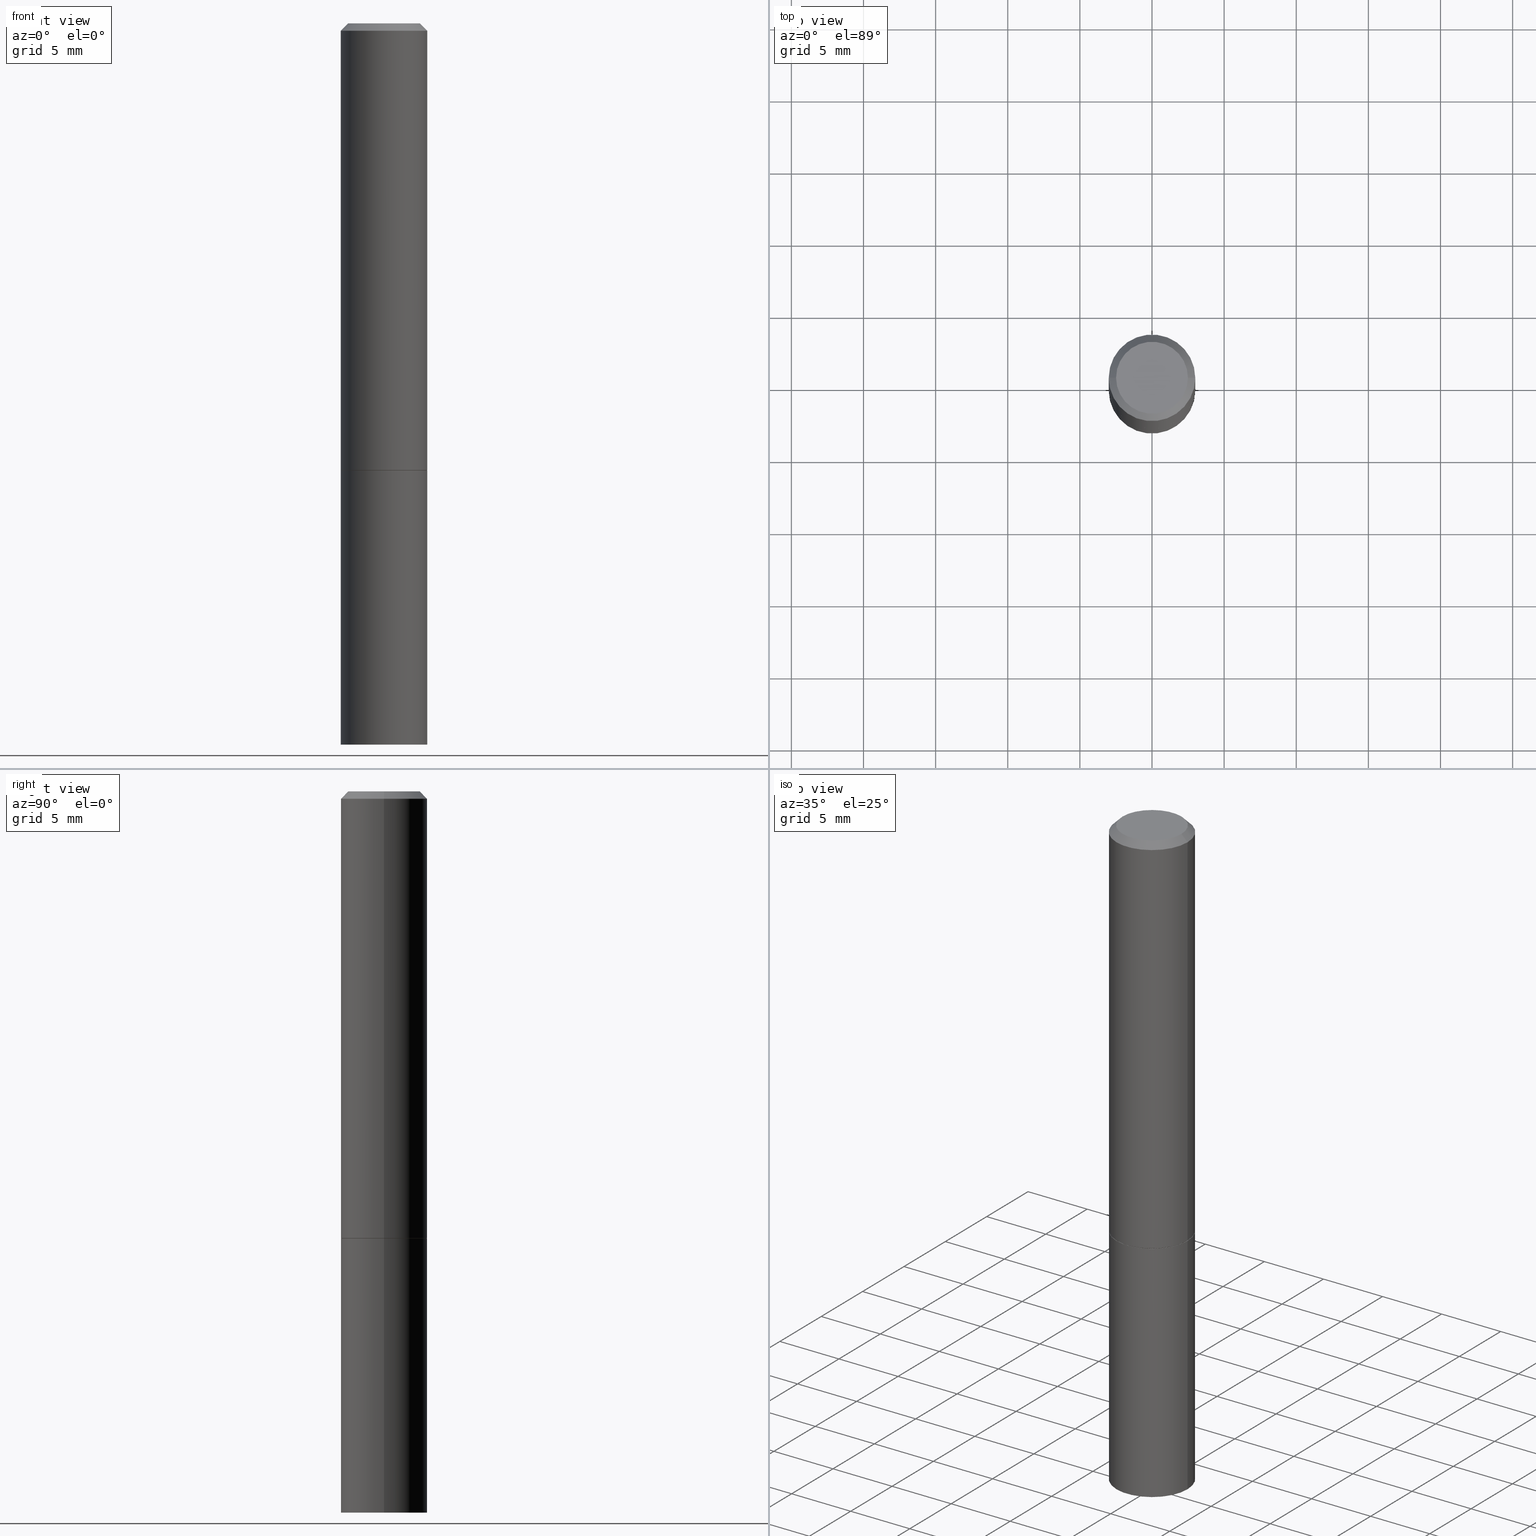
[diagram: canonical four-view strip — front | top / right | iso, engineering-drawing reading convention]
A machine part, canonical four-view strip (front | top / right | iso — engineering-drawing reading convention). The complete STEP part file that produces these views, byte-faithful:
ISO-10303-21;
HEADER;
FILE_DESCRIPTION (( 'STEP AP203' ),
    '1' );
FILE_NAME ('48659.STEP',
    '2024-02-28T13:14:34',
    ( '' ),
    ( '' ),
    'SwSTEP 2.0',
    'SolidWorks 2023',
    '' );
FILE_SCHEMA (( 'CONFIG_CONTROL_DESIGN' ));
ENDSEC;

DATA;
#1 = ORIENTED_EDGE ( 'NONE', *, *, #63, .F. ) ;
#2 = ADVANCED_FACE ( 'NONE', ( #236 ), #242, .T. ) ;
#3 = ORIENTED_EDGE ( 'NONE', *, *, #104, .T. ) ;
#4 = LOCAL_TIME ( 8, 14, 34.00000000000000000, #317 ) ;
#5 = PERSON_AND_ORGANIZATION ( #262, #220 ) ;
#6 = VERTEX_POINT ( 'NONE', #37 ) ;
#7 = APPROVAL_DATE_TIME ( #151, #335 ) ;
#8 = CARTESIAN_POINT ( 'NONE',  ( -0.1170999999999999958, -3.424008976134759437E-15, -1.220499999999999918 ) ) ;
#9 = CARTESIAN_POINT ( 'NONE',  ( 8.246878922347960873E-16, 0.1180999999999931133, -1.968500000000000583 ) ) ;
#10 = CLOSED_SHELL ( 'NONE', ( #2, #129, #85, #34 ) ) ;
#11 = PERSON_AND_ORGANIZATION_ROLE ( 'classification_officer' ) ;
#12 = VERTEX_POINT ( 'NONE', #8 ) ;
#13 = ADVANCED_FACE ( 'NONE', ( #187 ), #101, .T. ) ;
#14 = CALENDAR_DATE ( 2024, 28, 2 ) ;
#15 = ORIENTED_EDGE ( 'NONE', *, *, #63, .T. ) ;
#16 = AXIS2_PLACEMENT_3D ( 'NONE', #106, #43, #160 ) ;
#17 = EDGE_LOOP ( 'NONE', ( #113, #186, #1, #169 ) ) ;
#18 = DIRECTION ( 'NONE',  ( -2.445468806185136597E-29, 3.491481338843145583E-15, 1.000000000000000000 ) ) ;
#19 = DIRECTION ( 'NONE',  ( -2.445468806185136597E-29, 3.491481338843145583E-15, 1.000000000000000000 ) ) ;
#20 = CARTESIAN_POINT ( 'NONE',  ( 0.1180999999999999966, -7.697668907747479970E-15, -1.968500000000000139 ) ) ;
#21 = CC_DESIGN_SECURITY_CLASSIFICATION ( #54, ( #287 ) ) ;
#22 = DIRECTION ( 'NONE',  ( 1.000000000000000000, -6.982962677686266711E-15, 4.876176775795935793E-29 ) ) ;
#23 = APPLICATION_CONTEXT ( 'configuration controlled 3d designs of mechanical parts and assemblies' ) ;
#24 = EDGE_CURVE ( 'NONE', #232, #124, #316, .T. ) ;
#25 = APPROVAL_DATE_TIME ( #144, #346 ) ;
#26 = DIRECTION ( 'NONE',  ( 1.000000000000000000, -6.982962677686265133E-15, 0.000000000000000000 ) ) ;
#27 = ORIENTED_EDGE ( 'NONE', *, *, #214, .F. ) ;
#28 = CALENDAR_DATE ( 2024, 28, 2 ) ;
#29 = ORIENTED_EDGE ( 'NONE', *, *, #209, .T. ) ;
#30 = APPLICATION_PROTOCOL_DEFINITION ( 'international standard', 'config_control_design', 1994, #269 ) ;
#31 = ORIENTED_EDGE ( 'NONE', *, *, #194, .T. ) ;
#32 = DIRECTION ( 'NONE',  ( 1.000000000000000000, -6.982962677686266711E-15, 4.876176775795935793E-29 ) ) ;
#33 = LOCAL_TIME ( 8, 14, 34.00000000000000000, #86 ) ;
#34 = ADVANCED_FACE ( 'NONE', ( #211 ), #354, .T. ) ;
#35 = COORDINATED_UNIVERSAL_TIME_OFFSET ( 5, 0, .BEHIND. ) ;
#36 = APPROVAL_DATE_TIME ( #266, #168 ) ;
#37 = CARTESIAN_POINT ( 'NONE',  ( -0.1180999999999999966, -1.324694588815359885E-15, -1.219500000000000028 ) ) ;
#38 = CARTESIAN_POINT ( 'NONE',  ( 8.246878922347778449E-16, 0.1180999999999957362, -1.220500000000000362 ) ) ;
#39 = AXIS2_PLACEMENT_3D ( 'NONE', #364, #103, #257 ) ;
#40 = CARTESIAN_POINT ( 'NONE',  ( 0.1180999999999998301, -8.800544403136797528E-16, -0.02000000000000003511 ) ) ;
#41 = CC_DESIGN_PERSON_AND_ORGANIZATION_ASSIGNMENT ( #5, #314, ( #274 ) ) ;
#42 = EDGE_LOOP ( 'NONE', ( #27, #83, #29, #255 ) ) ;
#43 = DIRECTION ( 'NONE',  ( -2.445468806185136597E-29, 3.491481338843145583E-15, 1.000000000000000000 ) ) ;
#44 = CLOSED_SHELL ( 'NONE', ( #121, #362, #342, #303, #167, #13, #188, #307 ) ) ;
#45 = DIRECTION ( 'NONE',  ( 2.445468806185136597E-29, -3.491481338843145583E-15, -1.000000000000000000 ) ) ;
#46 = DIRECTION ( 'NONE',  ( 2.438088387897960049E-29, -3.491481338843145188E-15, -1.000000000000000000 ) ) ;
#47 = CYLINDRICAL_SURFACE ( 'NONE', #340, 0.1180999999999999134 ) ;
#48 = VECTOR ( 'NONE', #247, 39.37007874015748143 ) ;
#49 = CARTESIAN_POINT ( 'NONE',  ( 2.982249209142773869E-29, -4.257861492719216809E-15, -1.219500000000000028 ) ) ;
#50 =( LENGTH_UNIT ( ) NAMED_UNIT ( * ) SI_UNIT ( $, .METRE. ) );
#51 = EDGE_LOOP ( 'NONE', ( #207, #315, #15, #227 ) ) ;
#52 = AXIS2_PLACEMENT_3D ( 'NONE', #277, #195, #72 ) ;
#53 = EDGE_LOOP ( 'NONE', ( #203, #149 ) ) ;
#54 = SECURITY_CLASSIFICATION ( '', '', #288 ) ;
#55 = VECTOR ( 'NONE', #172, 39.37007874015748143 ) ;
#56 = MECHANICAL_CONTEXT ( 'NONE', #23, 'mechanical' ) ;
#57 = ORIENTED_EDGE ( 'NONE', *, *, #146, .F. ) ;
#58 = CYLINDRICAL_SURFACE ( 'NONE', #193, 0.1180999999999999134 ) ;
#59 = APPROVAL_PERSON_ORGANIZATION ( #177, #168, #213 ) ;
#60 = DIRECTION ( 'NONE',  ( -2.445468806185136597E-29, 3.491481338843145583E-15, 1.000000000000000000 ) ) ;
#61 = VERTEX_POINT ( 'NONE', #93 ) ;
#62 = CARTESIAN_POINT ( 'NONE',  ( -0.1180999999999998301, 7.548582654578837811E-16, -0.02000000000000003511 ) ) ;
#63 = EDGE_CURVE ( 'NONE', #230, #115, #89, .T. ) ;
#64 = DIRECTION ( 'NONE',  ( 1.000000000000000000, -6.982962677686265133E-15, 0.000000000000000000 ) ) ;
#65 = PLANE ( 'NONE',  #328 ) ;
#66 = ORIENTED_EDGE ( 'NONE', *, *, #104, .F. ) ;
#67 = DIRECTION ( 'NONE',  ( -2.445468806185136597E-29, 3.491481338843145583E-15, 1.000000000000000000 ) ) ;
#68 = EDGE_CURVE ( 'NONE', #208, #230, #120, .T. ) ;
#69 = CARTESIAN_POINT ( 'NONE',  ( 4.890937612370281041E-31, -6.982962677686302702E-17, -0.02000000000000003511 ) ) ;
#70 = AXIS2_PLACEMENT_3D ( 'NONE', #185, #189, #261 ) ;
#71 = CARTESIAN_POINT ( 'NONE',  ( 6.850286386810215676E-16, 0.09809999999999984011, -3.403800630954618031E-16 ) ) ;
#72 = DIRECTION ( 'NONE',  ( 1.000000000000000000, -6.982962677686265133E-15, 0.000000000000000000 ) ) ;
#73 = DIRECTION ( 'NONE',  ( -2.445468806185136877E-29, 3.491481338843145188E-15, 1.000000000000000000 ) ) ;
#74 = VECTOR ( 'NONE', #202, 39.37007874015748143 ) ;
#75 = CARTESIAN_POINT ( 'NONE',  ( 0.1180999999999999966, -5.082549384953964283E-15, -1.219500000000000028 ) ) ;
#76 = DIRECTION ( 'NONE',  ( 1.000000000000000000, 0.000000000000000000, 0.000000000000000000 ) ) ;
#77 = EDGE_LOOP ( 'NONE', ( #57, #295, #289, #154 ) ) ;
#78 = DATE_AND_TIME ( #333, #116 ) ;
#79 = CIRCLE ( 'NONE', #52, 0.1180999999999999966 ) ;
#80 = AXIS2_PLACEMENT_3D ( 'NONE', #112, #114, #76 ) ;
#81 = MANIFOLD_SOLID_BREP ( 'Body-Move/Copy2[2]', #44 ) ;
#82 = DIRECTION ( 'NONE',  ( -2.445468806185136597E-29, 3.491481338843145583E-15, 1.000000000000000000 ) ) ;
#83 = ORIENTED_EDGE ( 'NONE', *, *, #319, .T. ) ;
#84 = DIRECTION ( 'NONE',  ( -2.445468806185136597E-29, 3.491481338843145583E-15, 1.000000000000000000 ) ) ;
#85 = ADVANCED_FACE ( 'NONE', ( #156 ), #267, .F. ) ;
#86 = COORDINATED_UNIVERSAL_TIME_OFFSET ( 5, 0, .BEHIND. ) ;
#87 = DIRECTION ( 'NONE',  ( -1.000000000000000000, 6.982962677686265922E-15, -4.876176775795935793E-29 ) ) ;
#88 = CC_DESIGN_DATE_AND_TIME_ASSIGNMENT ( #264, #238, ( #54 ) ) ;
#89 = CIRCLE ( 'NONE', #139, 0.1180999999999998301 ) ;
#90 = PERSON_AND_ORGANIZATION_ROLE ( 'design_supplier' ) ;
#91 = CARTESIAN_POINT ( 'NONE',  ( 2.984694677948959472E-29, -4.261352974058059028E-15, -1.220499999999999918 ) ) ;
#92 = APPROVAL_ROLE ( '' ) ;
#93 = CARTESIAN_POINT ( 'NONE',  ( 0.1170999999999999958, -5.079057903615120487E-15, -1.220499999999999918 ) ) ;
#94 = CC_DESIGN_PERSON_AND_ORGANIZATION_ASSIGNMENT ( #184, #181, ( #287 ) ) ;
#95 = DIRECTION ( 'NONE',  ( -2.445468806185136597E-29, 3.491481338843145583E-15, 1.000000000000000000 ) ) ;
#96 = AXIS2_PLACEMENT_3D ( 'NONE', #130, #132, #198 ) ;
#97 =( GEOMETRIC_REPRESENTATION_CONTEXT ( 3 ) GLOBAL_UNCERTAINTY_ASSIGNED_CONTEXT ( ( #199 ) ) GLOBAL_UNIT_ASSIGNED_CONTEXT ( ( #138, #256, #147 ) ) REPRESENTATION_CONTEXT ( 'NONE', 'WORKASPACE' ) );
#98 = DIRECTION ( 'NONE',  ( -2.445468806185136597E-29, 3.491481338843145583E-15, 1.000000000000000000 ) ) ;
#99 = CARTESIAN_POINT ( 'NONE',  ( 4.890937612370281041E-31, -6.982962677686302702E-17, -0.02000000000000003511 ) ) ;
#100 = CARTESIAN_POINT ( 'NONE',  ( 0.1180999999999999966, -8.246878922347480654E-16, 5.758764772215000440E-30 ) ) ;
#101 = CONICAL_SURFACE ( 'NONE', #310, 0.1170999999999999958, 0.7853981633975507526 ) ;
#102 = AXIS2_PLACEMENT_3D ( 'NONE', #69, #45, #162 ) ;
#103 = DIRECTION ( 'NONE',  ( -2.445468806185136597E-29, 3.491481338843145583E-15, 1.000000000000000000 ) ) ;
#104 = EDGE_CURVE ( 'NONE', #12, #6, #125, .T. ) ;
#105 = CARTESIAN_POINT ( 'NONE',  ( 0.1180999999999998301, -8.800544403136797528E-16, -0.02000000000000003511 ) ) ;
#106 = CARTESIAN_POINT ( 'NONE',  ( -1.043851414335219820E-46, 1.490343170380447200E-32, 4.268512490100411279E-18 ) ) ;
#107 = AXIS2_PLACEMENT_3D ( 'NONE', #99, #19, #299 ) ;
#108 = CARTESIAN_POINT ( 'NONE',  ( 4.813905344975441835E-29, -6.872981015512731707E-15, -1.968500000000000139 ) ) ;
#109 = EDGE_CURVE ( 'NONE', #124, #232, #286, .T. ) ;
#110 = ORIENTED_EDGE ( 'NONE', *, *, #133, .F. ) ;
#111 = DIRECTION ( 'NONE',  ( 1.000000000000000000, -6.982962677686266711E-15, 4.876195163481339890E-29 ) ) ;
#112 = CARTESIAN_POINT ( 'NONE',  ( 0.000000000000000000, 0.000000000000000000, 0.000000000000000000 ) ) ;
#113 = ORIENTED_EDGE ( 'NONE', *, *, #137, .T. ) ;
#114 = DIRECTION ( 'NONE',  ( 0.000000000000000000, 0.000000000000000000, 1.000000000000000000 ) ) ;
#115 = VERTEX_POINT ( 'NONE', #62 ) ;
#116 = LOCAL_TIME ( 8, 14, 34.00000000000000000, #225 ) ;
#117 = PRODUCT_DEFINITION ( 'UNKNOWN', '', #287, #155 ) ;
#118 = COORDINATED_UNIVERSAL_TIME_OFFSET ( 5, 0, .BEHIND. ) ;
#119 = DIRECTION ( 'NONE',  ( 0.7071067811865466846, -7.319954787623252890E-15, -0.7071067811865483499 ) ) ;
#120 = LINE ( 'NONE', #40, #350 ) ;
#121 = ADVANCED_FACE ( 'NONE', ( #321 ), #216, .T. ) ;
#122 = CONICAL_SURFACE ( 'NONE', #329, 0.1180999999999998301, 0.7853981633974471688 ) ;
#123 = CALENDAR_DATE ( 2024, 28, 2 ) ;
#124 = VERTEX_POINT ( 'NONE', #233 ) ;
#125 = LINE ( 'NONE', #152, #235 ) ;
#126 = ORIENTED_EDGE ( 'NONE', *, *, #194, .F. ) ;
#127 = VECTOR ( 'NONE', #73, 39.37007874015748143 ) ;
#128 = APPROVAL_PERSON_ORGANIZATION ( #175, #346, #284 ) ;
#129 = ADVANCED_FACE ( 'NONE', ( #324 ), #65, .T. ) ;
#130 = CARTESIAN_POINT ( 'NONE',  ( 2.984694677948959472E-29, -4.261352974058059028E-15, -1.220499999999999918 ) ) ;
#131 = LINE ( 'NONE', #136, #48 ) ;
#132 = DIRECTION ( 'NONE',  ( -2.438088387897960049E-29, 3.491481338843145188E-15, 1.000000000000000000 ) ) ;
#133 = EDGE_CURVE ( 'NONE', #61, #12, #249, .T. ) ;
#134 = CC_DESIGN_APPROVAL ( #168, ( #287 ) ) ;
#135 = CARTESIAN_POINT ( 'NONE',  ( 0.000000000000000000, 0.000000000000000000, 0.000000000000000000 ) ) ;
#136 = CARTESIAN_POINT ( 'NONE',  ( 0.1170999999999999958, -5.079057903615120487E-15, -1.220499999999999918 ) ) ;
#137 = EDGE_CURVE ( 'NONE', #143, #6, #206, .T. ) ;
#138 =( CONVERSION_BASED_UNIT ( 'INCH', #254 ) LENGTH_UNIT ( ) NAMED_UNIT ( #280 ) );
#139 = AXIS2_PLACEMENT_3D ( 'NONE', #322, #98, #182 ) ;
#140 = FACE_OUTER_BOUND ( 'NONE', #51, .T. ) ;
#141 = CC_DESIGN_PERSON_AND_ORGANIZATION_ASSIGNMENT ( #336, #366, ( #117 ) ) ;
#142 = ORIENTED_EDGE ( 'NONE', *, *, #319, .F. ) ;
#143 = VERTEX_POINT ( 'NONE', #75 ) ;
#144 = DATE_AND_TIME ( #28, #300 ) ;
#145 = EDGE_LOOP ( 'NONE', ( #334, #313 ) ) ;
#146 = EDGE_CURVE ( 'NONE', #318, #232, #276, .T. ) ;
#147 =( NAMED_UNIT ( * ) SI_UNIT ( $, .STERADIAN. ) SOLID_ANGLE_UNIT ( ) );
#148 = AXIS2_PLACEMENT_3D ( 'NONE', #243, #358, #355 ) ;
#149 = ORIENTED_EDGE ( 'NONE', *, *, #251, .T. ) ;
#150 = CALENDAR_DATE ( 2024, 28, 2 ) ;
#151 = DATE_AND_TIME ( #150, #272 ) ;
#152 = CARTESIAN_POINT ( 'NONE',  ( -0.1170999999999999958, -3.429307430482981050E-15, -1.220499999999999918 ) ) ;
#153 = APPROVAL_STATUS ( 'not_yet_approved' ) ;
#154 = ORIENTED_EDGE ( 'NONE', *, *, #24, .F. ) ;
#155 = DESIGN_CONTEXT ( 'detailed design', #269, 'design' ) ;
#156 = FACE_OUTER_BOUND ( 'NONE', #258, .T. ) ;
#157 = ORIENTED_EDGE ( 'NONE', *, *, #240, .F. ) ;
#158 = DIRECTION ( 'NONE',  ( 1.000000000000000000, -6.982962677686266711E-15, 4.876176775795936353E-29 ) ) ;
#159 = EDGE_CURVE ( 'NONE', #318, #228, #79, .T. ) ;
#160 = DIRECTION ( 'NONE',  ( 1.000000000000000000, -6.982962677686266711E-15, 4.876195163481339890E-29 ) ) ;
#161 = AXIS2_PLACEMENT_3D ( 'NONE', #204, #282, #111 ) ;
#162 = DIRECTION ( 'NONE',  ( -1.000000000000000000, 6.982962677686266711E-15, 0.000000000000000000 ) ) ;
#163 = DIRECTION ( 'NONE',  ( -1.000000000000000000, 6.982962677686265922E-15, -4.876176775795935793E-29 ) ) ;
#164 = CARTESIAN_POINT ( 'NONE',  ( 2.984694677948958911E-29, -4.261352974058059028E-15, -1.220499999999999918 ) ) ;
#165 = VECTOR ( 'NONE', #166, 39.37007874015748143 ) ;
#166 = DIRECTION ( 'NONE',  ( -2.445468806185136877E-29, 3.491481338843145188E-15, 1.000000000000000000 ) ) ;
#167 = ADVANCED_FACE ( 'NONE', ( #302 ), #47, .T. ) ;
#168 = APPROVAL ( #153, 'UNSPECIFIED' ) ;
#169 = ORIENTED_EDGE ( 'NONE', *, *, #209, .F. ) ;
#170 = AXIS2_PLACEMENT_3D ( 'NONE', #49, #18, #197 ) ;
#171 = ORIENTED_EDGE ( 'NONE', *, *, #146, .T. ) ;
#172 = DIRECTION ( 'NONE',  ( -0.7071067811865466846, 2.468850131082247989E-15, -0.7071067811865483499 ) ) ;
#173 = EDGE_CURVE ( 'NONE', #61, #143, #131, .T. ) ;
#174 = ORIENTED_EDGE ( 'NONE', *, *, #109, .T. ) ;
#175 = PERSON_AND_ORGANIZATION ( #262, #220 ) ;
#176 = EDGE_LOOP ( 'NONE', ( #285, #212, #339, #359 ) ) ;
#177 = PERSON_AND_ORGANIZATION ( #262, #220 ) ;
#178 = CIRCLE ( 'NONE', #16, 0.09809999999999984011 ) ;
#179 = VERTEX_POINT ( 'NONE', #223 ) ;
#180 = CIRCLE ( 'NONE', #39, 0.1180999999999999966 ) ;
#181 = PERSON_AND_ORGANIZATION_ROLE ( 'creator' ) ;
#182 = DIRECTION ( 'NONE',  ( 1.000000000000000000, -6.982962677686266711E-15, 0.000000000000000000 ) ) ;
#183 = ORIENTED_EDGE ( 'NONE', *, *, #137, .F. ) ;
#184 = PERSON_AND_ORGANIZATION ( #262, #220 ) ;
#185 = CARTESIAN_POINT ( 'NONE',  ( 2.984694677948959472E-29, -4.261352974058059028E-15, -1.220499999999999918 ) ) ;
#186 = ORIENTED_EDGE ( 'NONE', *, *, #214, .T. ) ;
#187 = FACE_OUTER_BOUND ( 'NONE', #205, .T. ) ;
#188 = ADVANCED_FACE ( 'NONE', ( #271 ), #252, .F. ) ;
#189 = DIRECTION ( 'NONE',  ( -2.445468806185136597E-29, 3.491481338843145583E-15, 1.000000000000000000 ) ) ;
#190 = PRODUCT_RELATED_PRODUCT_CATEGORY ( 'detail', '', ( #274 ) ) ;
#191 = CARTESIAN_POINT ( 'NONE',  ( -0.1180999999999999966, 8.391509709326782957E-16, -5.809262341591043784E-30 ) ) ;
#192 = AXIS2_PLACEMENT_3D ( 'NONE', #38, #270, #290 ) ;
#193 = AXIS2_PLACEMENT_3D ( 'NONE', #231, #84, #32 ) ;
#194 = EDGE_CURVE ( 'NONE', #12, #61, #305, .T. ) ;
#195 = DIRECTION ( 'NONE',  ( -2.445468806185136597E-29, 3.491481338843145583E-15, 1.000000000000000000 ) ) ;
#196 = CC_DESIGN_PERSON_AND_ORGANIZATION_ASSIGNMENT ( #320, #11, ( #54 ) ) ;
#197 = DIRECTION ( 'NONE',  ( 1.000000000000000000, -6.982962677686265133E-15, 0.000000000000000000 ) ) ;
#198 = DIRECTION ( 'NONE',  ( 1.000000000000000000, -6.982962677686265922E-15, 4.876176775795935793E-29 ) ) ;
#199 = UNCERTAINTY_MEASURE_WITH_UNIT (LENGTH_MEASURE( 1.000000000000000082E-05 ), #138, 'distance_accuracy_value', 'NONE');
#200 = VECTOR ( 'NONE', #360, 39.37007874015748143 ) ;
#201 = AXIS2_PLACEMENT_3D ( 'NONE', #71, #46, #163 ) ;
#202 = DIRECTION ( 'NONE',  ( -2.445468806185136877E-29, 3.491481338843145188E-15, 1.000000000000000000 ) ) ;
#203 = ORIENTED_EDGE ( 'NONE', *, *, #349, .T. ) ;
#204 = CARTESIAN_POINT ( 'NONE',  ( -1.043851414335219820E-46, 1.490343170380447200E-32, 4.268512490100411279E-18 ) ) ;
#205 = EDGE_LOOP ( 'NONE', ( #66, #31, #217, #142 ) ) ;
#206 = CIRCLE ( 'NONE', #170, 0.1180999999999999966 ) ;
#207 = ORIENTED_EDGE ( 'NONE', *, *, #251, .F. ) ;
#208 = VERTEX_POINT ( 'NONE', #361 ) ;
#209 = EDGE_CURVE ( 'NONE', #143, #230, #246, .T. ) ;
#210 = CARTESIAN_POINT ( 'NONE',  ( 2.984694677948958911E-29, -4.261352974058059028E-15, -1.220499999999999918 ) ) ;
#211 = FACE_OUTER_BOUND ( 'NONE', #77, .T. ) ;
#212 = ORIENTED_EDGE ( 'NONE', *, *, #349, .F. ) ;
#213 = APPROVAL_ROLE ( '' ) ;
#214 = EDGE_CURVE ( 'NONE', #6, #115, #304, .T. ) ;
#215 = DIRECTION ( 'NONE',  ( -0.7071067811866199593, 7.493145998870616062E-15, 0.7071067811864750752 ) ) ;
#216 = CONICAL_SURFACE ( 'NONE', #363, 0.1170999999999999958, 0.7853981633975507526 ) ;
#217 = ORIENTED_EDGE ( 'NONE', *, *, #173, .T. ) ;
#218 = DIRECTION ( 'NONE',  ( 1.000000000000000000, -6.982962677686269077E-15, 0.000000000000000000 ) ) ;
#219 = PLANE ( 'NONE',  #201 ) ;
#220 = ORGANIZATION ( 'UNSPECIFIED', 'UNSPECIFIED', '' ) ;
#221 = DIRECTION ( 'NONE',  ( -2.445468806185136597E-29, 3.491481338843145583E-15, 1.000000000000000000 ) ) ;
#222 = LINE ( 'NONE', #100, #127 ) ;
#223 = CARTESIAN_POINT ( 'NONE',  ( -0.09809999999999984011, 7.199434520694527237E-16, 4.268512490095498617E-18 ) ) ;
#224 = CIRCLE ( 'NONE', #107, 0.1180999999999998301 ) ;
#225 = COORDINATED_UNIVERSAL_TIME_OFFSET ( 5, 0, .BEHIND. ) ;
#226 = ORIENTED_EDGE ( 'NONE', *, *, #109, .F. ) ;
#227 = ORIENTED_EDGE ( 'NONE', *, *, #326, .F. ) ;
#228 = VERTEX_POINT ( 'NONE', #20 ) ;
#229 = FACE_OUTER_BOUND ( 'NONE', #17, .T. ) ;
#230 = VERTEX_POINT ( 'NONE', #105 ) ;
#231 = CARTESIAN_POINT ( 'NONE',  ( 0.000000000000000000, 0.000000000000000000, 0.000000000000000000 ) ) ;
#232 = VERTEX_POINT ( 'NONE', #330 ) ;
#233 = CARTESIAN_POINT ( 'NONE',  ( 0.1180999999999999966, -5.086040866292807290E-15, -1.220499999999999918 ) ) ;
#234 = PERSON_AND_ORGANIZATION ( #262, #220 ) ;
#235 = VECTOR ( 'NONE', #215, 39.37007874015748143 ) ;
#236 = FACE_OUTER_BOUND ( 'NONE', #344, .T. ) ;
#237 = CONICAL_SURFACE ( 'NONE', #102, 0.1180999999999998301, 0.7853981633974471688 ) ;
#238 = DATE_TIME_ROLE ( 'classification_date' ) ;
#239 = ORIENTED_EDGE ( 'NONE', *, *, #24, .T. ) ;
#240 = EDGE_CURVE ( 'NONE', #228, #124, #222, .T. ) ;
#241 = PERSON_AND_ORGANIZATION ( #262, #220 ) ;
#242 = CYLINDRICAL_SURFACE ( 'NONE', #148, 0.1180999999999999966 ) ;
#243 = CARTESIAN_POINT ( 'NONE',  ( 0.000000000000000000, 0.000000000000000000, 0.000000000000000000 ) ) ;
#244 = AXIS2_PLACEMENT_3D ( 'NONE', #325, #60, #158 ) ;
#245 = PRODUCT_DEFINITION_SHAPE ( 'NONE', 'NONE',  #117 ) ;
#246 = LINE ( 'NONE', #250, #200 ) ;
#247 = DIRECTION ( 'NONE',  ( 0.7071067811866199593, -2.468850131083015945E-15, 0.7071067811864750752 ) ) ;
#248 = CARTESIAN_POINT ( 'NONE',  ( -0.1180999999999999966, -4.728016023852716776E-15, -1.968500000000000139 ) ) ;
#249 = CIRCLE ( 'NONE', #323, 0.1170999999999999958 ) ;
#250 = CARTESIAN_POINT ( 'NONE',  ( 0.1180999999999999134, -8.246878922347474737E-16, 5.758764772214996237E-30 ) ) ;
#251 = EDGE_CURVE ( 'NONE', #208, #179, #178, .T. ) ;
#252 = PLANE ( 'NONE',  #96 ) ;
#253 = AXIS2_PLACEMENT_3D ( 'NONE', #91, #265, #64 ) ;
#254 = LENGTH_MEASURE_WITH_UNIT ( LENGTH_MEASURE( 0.02539999999999999897 ), #50 );
#255 = ORIENTED_EDGE ( 'NONE', *, *, #291, .F. ) ;
#256 =( NAMED_UNIT ( * ) PLANE_ANGLE_UNIT ( ) SI_UNIT ( $, .RADIAN. ) );
#257 = DIRECTION ( 'NONE',  ( 1.000000000000000000, -6.982962677686265133E-15, 0.000000000000000000 ) ) ;
#258 = EDGE_LOOP ( 'NONE', ( #174, #239 ) ) ;
#259 = EDGE_LOOP ( 'NONE', ( #298, #3, #183, #283 ) ) ;
#260 = SHAPE_DEFINITION_REPRESENTATION ( #245, #296 ) ;
#261 = DIRECTION ( 'NONE',  ( 1.000000000000000000, -6.982962677686265133E-15, 0.000000000000000000 ) ) ;
#262 = PERSON ( 'UNSPECIFIED', 'UNSPECIFIED', 'UNSPECIFIED', ('UNSPECIFIED'), ('UNSPECIFIED'), ('UNSPECIFIED') ) ;
#263 = CARTESIAN_POINT ( 'NONE',  ( 2.984694677948958911E-29, -4.261352974058059028E-15, -1.220499999999999918 ) ) ;
#264 = DATE_AND_TIME ( #14, #4 ) ;
#265 = DIRECTION ( 'NONE',  ( -2.445468806185136597E-29, 3.491481338843145583E-15, 1.000000000000000000 ) ) ;
#266 = DATE_AND_TIME ( #123, #33 ) ;
#267 = PLANE ( 'NONE',  #192 ) ;
#268 = CC_DESIGN_DATE_AND_TIME_ASSIGNMENT ( #78, #347, ( #117 ) ) ;
#269 = APPLICATION_CONTEXT ( 'configuration controlled 3d designs of mechanical parts and assemblies' ) ;
#270 = DIRECTION ( 'NONE',  ( 2.438088387897960049E-29, -3.491481338843145188E-15, -1.000000000000000000 ) ) ;
#271 = FACE_OUTER_BOUND ( 'NONE', #337, .T. ) ;
#272 = LOCAL_TIME ( 8, 14, 34.00000000000000000, #35 ) ;
#273 = CC_DESIGN_PERSON_AND_ORGANIZATION_ASSIGNMENT ( #234, #90, ( #287 ) ) ;
#274 = PRODUCT ( '48659', '48659', '', ( #56 ) ) ;
#275 = FACE_OUTER_BOUND ( 'NONE', #53, .T. ) ;
#276 = LINE ( 'NONE', #191, #165 ) ;
#277 = CARTESIAN_POINT ( 'NONE',  ( 4.813905344975441835E-29, -6.872981015512731707E-15, -1.968500000000000139 ) ) ;
#278 = CIRCLE ( 'NONE', #161, 0.09809999999999984011 ) ;
#279 = DIRECTION ( 'NONE',  ( -2.445468806185136597E-29, 3.491481338843145583E-15, 1.000000000000000000 ) ) ;
#280 = DIMENSIONAL_EXPONENTS ( 1.000000000000000000, 0.000000000000000000, 0.000000000000000000, 0.000000000000000000, 0.000000000000000000, 0.000000000000000000, 0.000000000000000000 ) ;
#281 = APPROVAL_STATUS ( 'not_yet_approved' ) ;
#282 = DIRECTION ( 'NONE',  ( -2.445468806185136597E-29, 3.491481338843145583E-15, 1.000000000000000000 ) ) ;
#283 = ORIENTED_EDGE ( 'NONE', *, *, #173, .F. ) ;
#284 = APPROVAL_ROLE ( '' ) ;
#285 = ORIENTED_EDGE ( 'NONE', *, *, #68, .F. ) ;
#286 = CIRCLE ( 'NONE', #70, 0.1180999999999999966 ) ;
#287 = PRODUCT_DEFINITION_FORMATION_WITH_SPECIFIED_SOURCE ( 'ANY', '', #274, .NOT_KNOWN. ) ;
#288 = SECURITY_CLASSIFICATION_LEVEL ( 'unclassified' ) ;
#289 = ORIENTED_EDGE ( 'NONE', *, *, #240, .T. ) ;
#290 = DIRECTION ( 'NONE',  ( -1.000000000000000000, 6.982962677686265922E-15, -4.876176775795935793E-29 ) ) ;
#291 = EDGE_CURVE ( 'NONE', #115, #230, #224, .T. ) ;
#292 = DIRECTION ( 'NONE',  ( 1.000000000000000000, -6.982962677686269077E-15, 0.000000000000000000 ) ) ;
#293 = CC_DESIGN_APPROVAL ( #346, ( #117 ) ) ;
#294 = DIRECTION ( 'NONE',  ( 1.000000000000000000, -6.982962677686269077E-15, 0.000000000000000000 ) ) ;
#295 = ORIENTED_EDGE ( 'NONE', *, *, #159, .T. ) ;
#296 = ADVANCED_BREP_SHAPE_REPRESENTATION ( '48659', ( #352, #81, #80 ), #97 ) ;
#297 = CARTESIAN_POINT ( 'NONE',  ( 2.984694677948958911E-29, -4.261352974058059028E-15, -1.220499999999999918 ) ) ;
#298 = ORIENTED_EDGE ( 'NONE', *, *, #133, .T. ) ;
#299 = DIRECTION ( 'NONE',  ( 1.000000000000000000, -6.982962677686266711E-15, 0.000000000000000000 ) ) ;
#300 = LOCAL_TIME ( 8, 14, 34.00000000000000000, #118 ) ;
#301 = DIRECTION ( 'NONE',  ( -2.445468806185136597E-29, 3.491481338843145583E-15, 1.000000000000000000 ) ) ;
#302 = FACE_OUTER_BOUND ( 'NONE', #42, .T. ) ;
#303 = ADVANCED_FACE ( 'NONE', ( #327 ), #237, .T. ) ;
#304 = LINE ( 'NONE', #331, #74 ) ;
#305 = CIRCLE ( 'NONE', #356, 0.1170999999999999958 ) ;
#306 = CIRCLE ( 'NONE', #357, 0.1180999999999999966 ) ;
#307 = ADVANCED_FACE ( 'NONE', ( #275 ), #219, .F. ) ;
#308 = LINE ( 'NONE', #345, #55 ) ;
#309 = CARTESIAN_POINT ( 'NONE',  ( 4.890937612370281041E-31, -6.982962677686302702E-17, -0.02000000000000003511 ) ) ;
#310 = AXIS2_PLACEMENT_3D ( 'NONE', #297, #67, #294 ) ;
#311 = CC_DESIGN_APPROVAL ( #335, ( #54 ) ) ;
#312 = APPLICATION_PROTOCOL_DEFINITION ( 'international standard', 'config_control_design', 1994, #23 ) ;
#313 = ORIENTED_EDGE ( 'NONE', *, *, #159, .F. ) ;
#314 = PERSON_AND_ORGANIZATION_ROLE ( 'design_owner' ) ;
#315 = ORIENTED_EDGE ( 'NONE', *, *, #68, .T. ) ;
#316 = CIRCLE ( 'NONE', #253, 0.1180999999999999966 ) ;
#317 = COORDINATED_UNIVERSAL_TIME_OFFSET ( 5, 0, .BEHIND. ) ;
#318 = VERTEX_POINT ( 'NONE', #248 ) ;
#319 = EDGE_CURVE ( 'NONE', #6, #143, #180, .T. ) ;
#320 = PERSON_AND_ORGANIZATION ( #262, #220 ) ;
#321 = FACE_OUTER_BOUND ( 'NONE', #259, .T. ) ;
#322 = CARTESIAN_POINT ( 'NONE',  ( 4.890937612370281041E-31, -6.982962677686302702E-17, -0.02000000000000003511 ) ) ;
#323 = AXIS2_PLACEMENT_3D ( 'NONE', #210, #221, #365 ) ;
#324 = FACE_OUTER_BOUND ( 'NONE', #145, .T. ) ;
#325 = CARTESIAN_POINT ( 'NONE',  ( 0.000000000000000000, 0.000000000000000000, 0.000000000000000000 ) ) ;
#326 = EDGE_CURVE ( 'NONE', #179, #115, #308, .T. ) ;
#327 = FACE_OUTER_BOUND ( 'NONE', #176, .T. ) ;
#328 = AXIS2_PLACEMENT_3D ( 'NONE', #9, #348, #87 ) ;
#329 = AXIS2_PLACEMENT_3D ( 'NONE', #309, #343, #338 ) ;
#330 = CARTESIAN_POINT ( 'NONE',  ( -0.1180999999999999966, -4.728016023852716776E-15, -1.220499999999999918 ) ) ;
#331 = CARTESIAN_POINT ( 'NONE',  ( -0.1180999999999999134, 8.391509709326777040E-16, -5.809262341591039580E-30 ) ) ;
#332 = EDGE_CURVE ( 'NONE', #228, #318, #306, .T. ) ;
#333 = CALENDAR_DATE ( 2024, 28, 2 ) ;
#334 = ORIENTED_EDGE ( 'NONE', *, *, #332, .F. ) ;
#335 = APPROVAL ( #353, 'UNSPECIFIED' ) ;
#336 = PERSON_AND_ORGANIZATION ( #262, #220 ) ;
#337 = EDGE_LOOP ( 'NONE', ( #110, #126 ) ) ;
#338 = DIRECTION ( 'NONE',  ( -1.000000000000000000, 6.982962677686266711E-15, 0.000000000000000000 ) ) ;
#339 = ORIENTED_EDGE ( 'NONE', *, *, #326, .T. ) ;
#340 = AXIS2_PLACEMENT_3D ( 'NONE', #135, #279, #22 ) ;
#341 = APPROVAL_PERSON_ORGANIZATION ( #241, #335, #92 ) ;
#342 = ADVANCED_FACE ( 'NONE', ( #140 ), #122, .T. ) ;
#343 = DIRECTION ( 'NONE',  ( 2.445468806185136597E-29, -3.491481338843145583E-15, -1.000000000000000000 ) ) ;
#344 = EDGE_LOOP ( 'NONE', ( #351, #171, #226, #157 ) ) ;
#345 = CARTESIAN_POINT ( 'NONE',  ( -0.1180999999999998301, 7.548582654578837811E-16, -0.02000000000000003511 ) ) ;
#346 = APPROVAL ( #281, 'UNSPECIFIED' ) ;
#347 = DATE_TIME_ROLE ( 'creation_date' ) ;
#348 = DIRECTION ( 'NONE',  ( 2.438088387897960049E-29, -3.491481338843145188E-15, -1.000000000000000000 ) ) ;
#349 = EDGE_CURVE ( 'NONE', #179, #208, #278, .T. ) ;
#350 = VECTOR ( 'NONE', #119, 39.37007874015748143 ) ;
#351 = ORIENTED_EDGE ( 'NONE', *, *, #332, .T. ) ;
#352 = MANIFOLD_SOLID_BREP ( 'Body-Move/Copy2[1]', #10 ) ;
#353 = APPROVAL_STATUS ( 'not_yet_approved' ) ;
#354 = CYLINDRICAL_SURFACE ( 'NONE', #244, 0.1180999999999999966 ) ;
#355 = DIRECTION ( 'NONE',  ( 1.000000000000000000, -6.982962677686266711E-15, 4.876176775795936353E-29 ) ) ;
#356 = AXIS2_PLACEMENT_3D ( 'NONE', #164, #301, #218 ) ;
#357 = AXIS2_PLACEMENT_3D ( 'NONE', #108, #82, #26 ) ;
#358 = DIRECTION ( 'NONE',  ( -2.445468806185136597E-29, 3.491481338843145583E-15, 1.000000000000000000 ) ) ;
#359 = ORIENTED_EDGE ( 'NONE', *, *, #291, .T. ) ;
#360 = DIRECTION ( 'NONE',  ( -2.445468806185136877E-29, 3.491481338843145188E-15, 1.000000000000000000 ) ) ;
#361 = CARTESIAN_POINT ( 'NONE',  ( 0.09809999999999984011, -7.765346469475328709E-16, 4.268512490105521927E-18 ) ) ;
#362 = ADVANCED_FACE ( 'NONE', ( #229 ), #58, .T. ) ;
#363 = AXIS2_PLACEMENT_3D ( 'NONE', #263, #95, #292 ) ;
#364 = CARTESIAN_POINT ( 'NONE',  ( 2.982249209142773869E-29, -4.257861492719216809E-15, -1.219500000000000028 ) ) ;
#365 = DIRECTION ( 'NONE',  ( 1.000000000000000000, -6.982962677686269077E-15, 0.000000000000000000 ) ) ;
#366 = PERSON_AND_ORGANIZATION_ROLE ( 'creator' ) ;
ENDSEC;
END-ISO-10303-21;
